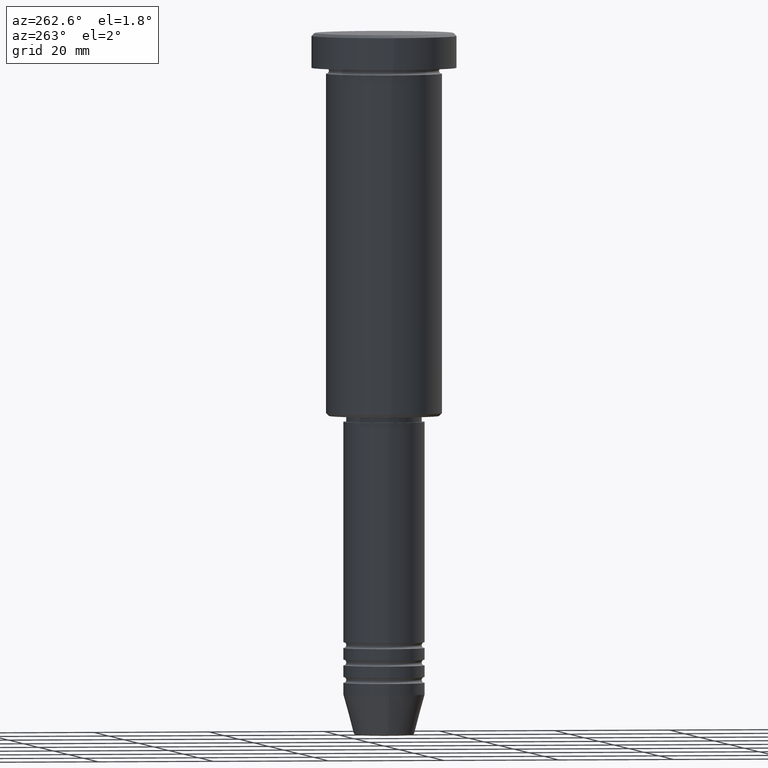
[diagram: clean part render]
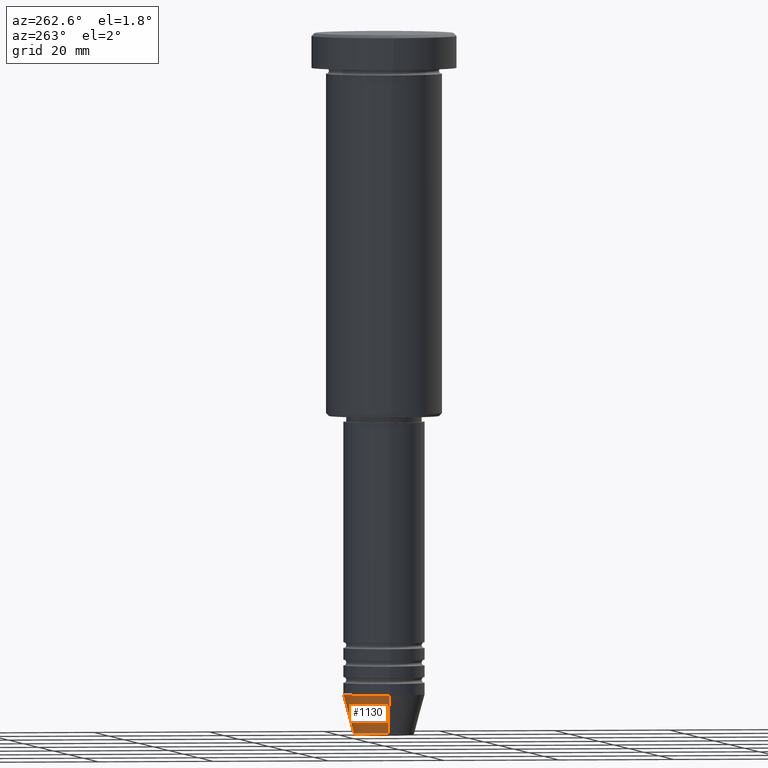
[diagram: same view with one face highlighted and labeled with its STEP entity id]
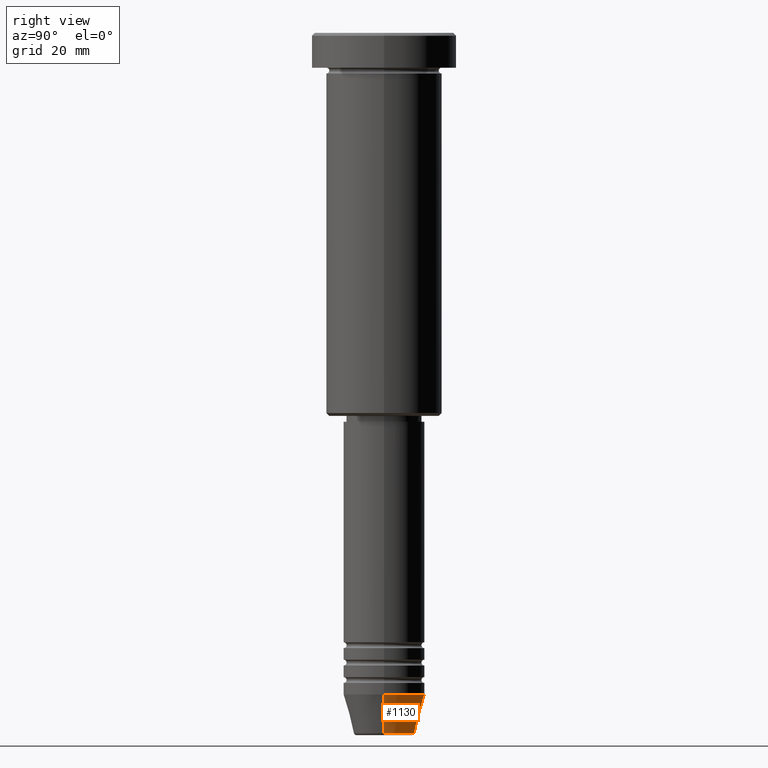
[diagram: same view with one face highlighted and labeled with its STEP entity id]
A machine part, auxiliary view. The second image highlights one B-rep face of the part: STEP entity #1130.
A second angle (right view) of the same face is appended — the face is thin or edge-on in the first view.
In plain terms, the highlighted conical surface has half-angle 15 deg.
Its self-contained STEP definition (entity closure, byte-faithful):
#51 = LINE ( 'NONE', #772, #467 ) ;
#88 = DIRECTION ( 'NONE',  ( 1.000000000000000000, 0.000000000000000000, 0.000000000000000000 ) ) ;
#89 = EDGE_CURVE ( 'NONE', #1019, #1025, #141, .T. ) ;
#141 = LINE ( 'NONE', #976, #934 ) ;
#191 = VERTEX_POINT ( 'NONE', #1105 ) ;
#227 = FACE_OUTER_BOUND ( 'NONE', #883, .T. ) ;
#241 = DIRECTION ( 'NONE',  ( 1.000000000000000000, 0.000000000000000000, 0.000000000000000000 ) ) ;
#245 = DIRECTION ( 'NONE',  ( 1.000000000000000000, 0.000000000000000000, 0.000000000000000000 ) ) ;
#285 = DIRECTION ( 'NONE',  ( 0.2588190451025213501, 0.000000000000000000, 0.9659258262890680902 ) ) ;
#333 = DIRECTION ( 'NONE',  ( -0.000000000000000000, -0.000000000000000000, 1.000000000000000000 ) ) ;
#354 = CONICAL_SURFACE ( 'NONE', #1169, 7.000000000000000000, 0.2617993877991500740 ) ;
#467 = VECTOR ( 'NONE', #285, 1000.000000000000000 ) ;
#540 = CIRCLE ( 'NONE', #1119, 7.000000000000000000 ) ;
#639 = EDGE_CURVE ( 'NONE', #191, #833, #51, .T. ) ;
#679 = EDGE_CURVE ( 'NONE', #191, #1019, #1053, .T. ) ;
#701 = DIRECTION ( 'NONE',  ( -0.000000000000000000, -0.000000000000000000, 1.000000000000000000 ) ) ;
#770 = CARTESIAN_POINT ( 'NONE',  ( 0.000000000000000000, 0.000000000000000000, -114.0000000000000142 ) ) ;
#772 = CARTESIAN_POINT ( 'NONE',  ( 7.000000000000000000, 0.000000000000000000, -114.0000000000000142 ) ) ;
#815 = ORIENTED_EDGE ( 'NONE', *, *, #89, .T. ) ;
#826 = ORIENTED_EDGE ( 'NONE', *, *, #679, .T. ) ;
#833 = VERTEX_POINT ( 'NONE', #1102 ) ;
#844 = CARTESIAN_POINT ( 'NONE',  ( -7.000000000000000000, 8.572527594031473190E-16, -114.0000000000000142 ) ) ;
#883 = EDGE_LOOP ( 'NONE', ( #826, #815, #1083, #943 ) ) ;
#896 = CARTESIAN_POINT ( 'NONE',  ( 0.000000000000000000, 0.000000000000000000, -120.6294095225512564 ) ) ;
#934 = VECTOR ( 'NONE', #1157, 1000.000000000000000 ) ;
#943 = ORIENTED_EDGE ( 'NONE', *, *, #639, .F. ) ;
#976 = CARTESIAN_POINT ( 'NONE',  ( -7.000000000000000000, 8.572527594031473190E-16, -114.0000000000000142 ) ) ;
#1019 = VERTEX_POINT ( 'NONE', #1129 ) ;
#1025 = VERTEX_POINT ( 'NONE', #844 ) ;
#1053 = CIRCLE ( 'NONE', #1117, 5.223655072137193045 ) ;
#1058 = CARTESIAN_POINT ( 'NONE',  ( 0.000000000000000000, 0.000000000000000000, -114.0000000000000142 ) ) ;
#1083 = ORIENTED_EDGE ( 'NONE', *, *, #1163, .F. ) ;
#1102 = CARTESIAN_POINT ( 'NONE',  ( 7.000000000000000000, 0.000000000000000000, -114.0000000000000142 ) ) ;
#1104 = DIRECTION ( 'NONE',  ( -0.000000000000000000, -0.000000000000000000, 1.000000000000000000 ) ) ;
#1105 = CARTESIAN_POINT ( 'NONE',  ( 5.223655072137193045, 0.000000000000000000, -120.6294095225512564 ) ) ;
#1117 = AXIS2_PLACEMENT_3D ( 'NONE', #896, #1104, #88 ) ;
#1119 = AXIS2_PLACEMENT_3D ( 'NONE', #1058, #701, #245 ) ;
#1129 = CARTESIAN_POINT ( 'NONE',  ( -5.223655072137193045, 7.484830028987060174E-16, -120.6294095225512564 ) ) ;
#1130 = ADVANCED_FACE ( 'NONE', ( #227 ), #354, .T. ) ;
#1157 = DIRECTION ( 'NONE',  ( -0.2588190451025213501, 3.169619151431772337E-17, 0.9659258262890680902 ) ) ;
#1163 = EDGE_CURVE ( 'NONE', #833, #1025, #540, .T. ) ;
#1169 = AXIS2_PLACEMENT_3D ( 'NONE', #770, #333, #241 ) ;